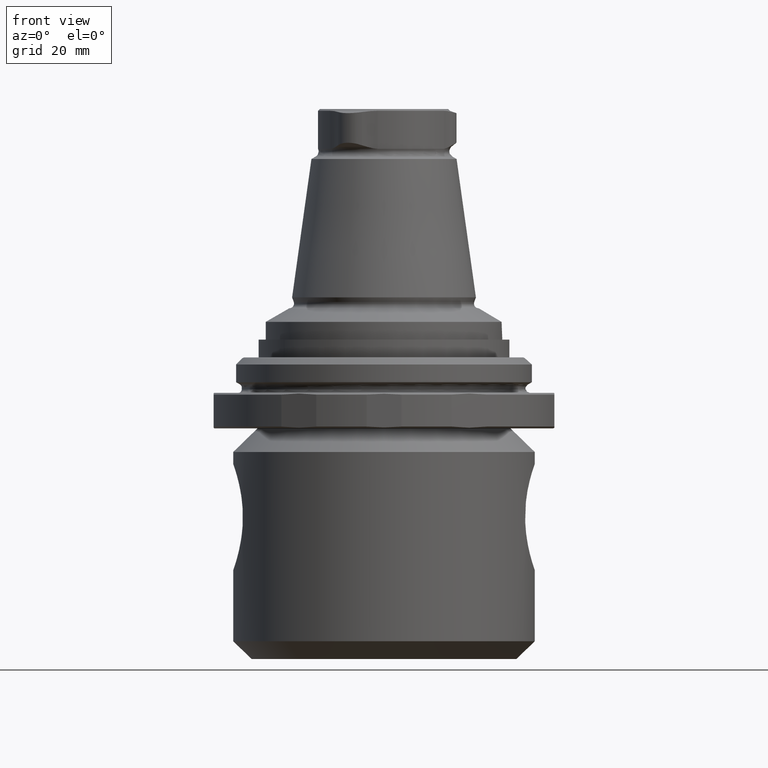
[diagram: clean part render]
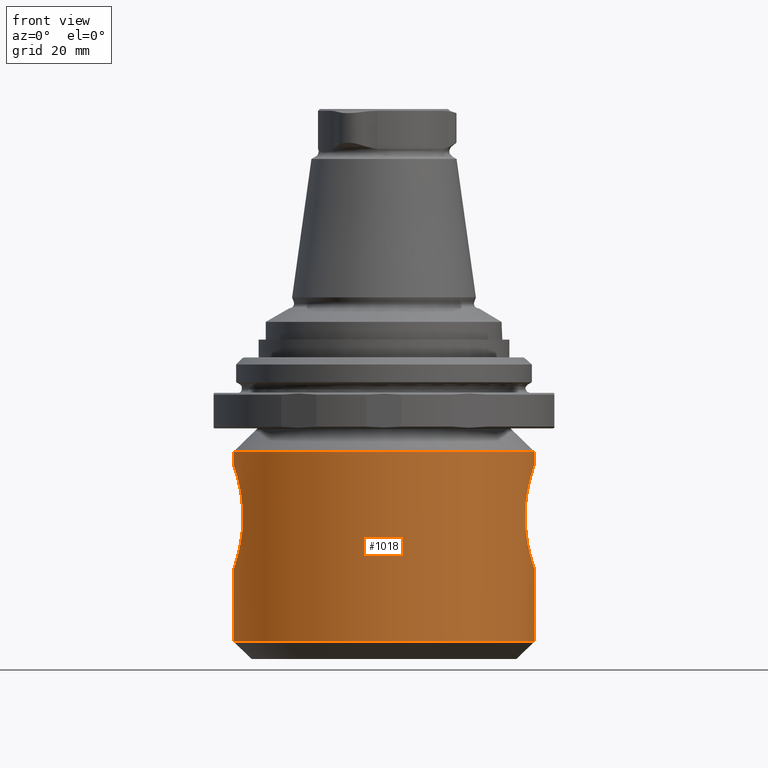
[diagram: same view with one face highlighted and labeled with its STEP entity id]
A machine part, front view. The second image highlights one B-rep face of the part: STEP entity #1018.
In plain terms, the highlighted cylindrical surface (bore or boss wall) has radius 25.5 mm, axis along (-0, -0, -1).
Its self-contained STEP definition (entity closure, byte-faithful):
#20=ELLIPSE('',#1156,730.669562870024,25.5);
#21=ELLIPSE('',#1157,730.669562870024,25.5);
#50=LINE('',#1891,#80);
#51=LINE('',#1905,#81);
#80=VECTOR('',#1437,1000.);
#81=VECTOR('',#1438,1000.);
#122=B_SPLINE_CURVE_WITH_KNOTS('',3,(#1867,#1868,#1869,#1870,#1871,#1872,
#1873,#1874,#1875,#1876,#1877),.UNSPECIFIED.,.F.,.F.,(4,1,1,1,1,1,1,1,4),
(4.66151540753909E-15,0.00335326394243602,0.00670652788486739,0.0100597918272988,
0.0134130557697301,0.0167663197121615,0.0201195836545928,0.0234728475970242,
0.0268261115394556),.UNSPECIFIED.);
#123=B_SPLINE_CURVE_WITH_KNOTS('',3,(#1881,#1882,#1883,#1884,#1885,#1886,
#1887,#1888,#1889,#1890),.UNSPECIFIED.,.F.,.F.,(4,1,1,1,1,1,1,4),(7.62346766405422E-15,
0.00291051555228811,0.00582103110456859,0.00873154665684907,0.0116420622091296,
0.01455257776141,0.0174630933136905,0.0232841244182515),.UNSPECIFIED.);
#124=B_SPLINE_CURVE_WITH_KNOTS('',3,(#1894,#1895,#1896,#1897,#1898,#1899,
#1900,#1901,#1902,#1903),.UNSPECIFIED.,.F.,.F.,(4,1,1,1,1,1,1,4),(1.09713545893022E-17,
0.00319408149327961,0.0063881629865592,0.00958224447983879,0.0127763259731184,
0.015970407466398,0.0191644889596776,0.0255526519462368),.UNSPECIFIED.);
#125=B_SPLINE_CURVE_WITH_KNOTS('',3,(#1907,#1908,#1909,#1910,#1911,#1912,
#1913,#1914,#1915,#1916),.UNSPECIFIED.,.F.,.F.,(4,1,1,1,1,1,1,4),(1.09713545893022E-17,
0.00319410284334378,0.00638820568668756,0.00958230853003133,0.0127764113733751,
0.0159705142167189,0.0191646170600626,0.0255528227467502),.UNSPECIFIED.);
#406=ORIENTED_EDGE('',*,*,#557,.F.);
#407=ORIENTED_EDGE('',*,*,#558,.F.);
#408=ORIENTED_EDGE('',*,*,#559,.F.);
#409=ORIENTED_EDGE('',*,*,#560,.F.);
#410=ORIENTED_EDGE('',*,*,#561,.F.);
#411=ORIENTED_EDGE('',*,*,#562,.F.);
#412=ORIENTED_EDGE('',*,*,#563,.F.);
#413=ORIENTED_EDGE('',*,*,#564,.F.);
#414=ORIENTED_EDGE('',*,*,#554,.F.);
#415=ORIENTED_EDGE('',*,*,#553,.T.);
#553=EDGE_CURVE('',#654,#654,#717,.T.);
#554=EDGE_CURVE('',#655,#655,#718,.T.);
#557=EDGE_CURVE('',#658,#659,#20,.F.);
#558=EDGE_CURVE('',#660,#658,#122,.T.);
#559=EDGE_CURVE('',#661,#660,#21,.F.);
#560=EDGE_CURVE('',#659,#661,#123,.T.);
#561=EDGE_CURVE('',#662,#663,#50,.F.);
#562=EDGE_CURVE('',#664,#662,#124,.T.);
#563=EDGE_CURVE('',#665,#664,#51,.T.);
#564=EDGE_CURVE('',#663,#665,#125,.T.);
#654=VERTEX_POINT('',#1854);
#655=VERTEX_POINT('',#1857);
#658=VERTEX_POINT('',#1865);
#659=VERTEX_POINT('',#1866);
#660=VERTEX_POINT('',#1878);
#661=VERTEX_POINT('',#1880);
#662=VERTEX_POINT('',#1892);
#663=VERTEX_POINT('',#1893);
#664=VERTEX_POINT('',#1904);
#665=VERTEX_POINT('',#1906);
#717=CIRCLE('',#1149,25.5);
#718=CIRCLE('',#1151,25.5);
#813=EDGE_LOOP('',(#406,#407,#408,#409));
#814=EDGE_LOOP('',(#410,#411,#412,#413));
#815=EDGE_LOOP('',(#414));
#816=EDGE_LOOP('',(#415));
#913=FACE_BOUND('',#813,.T.);
#914=FACE_BOUND('',#814,.T.);
#915=FACE_BOUND('',#815,.T.);
#916=FACE_BOUND('',#816,.T.);
#951=CYLINDRICAL_SURFACE('',#1155,25.5);
#1018=ADVANCED_FACE('',(#913,#914,#915,#916),#951,.T.);
#1149=AXIS2_PLACEMENT_3D('',#1853,#1419,#1420);
#1151=AXIS2_PLACEMENT_3D('',#1856,#1423,#1424);
#1155=AXIS2_PLACEMENT_3D('',#1863,#1431,#1432);
#1156=AXIS2_PLACEMENT_3D('',#1864,#1433,#1434);
#1157=AXIS2_PLACEMENT_3D('',#1879,#1435,#1436);
#1419=DIRECTION('',(-5.47430718319515E-16,-8.51929311524195E-24,-1.));
#1420=DIRECTION('',(-6.38378239159465E-16,1.,-3.83055215771257E-23));
#1423=DIRECTION('',(-5.47430718319515E-16,-8.51929311524195E-24,-1.));
#1424=DIRECTION('',(-6.38378239159465E-16,1.,-3.83055215771257E-23));
#1431=DIRECTION('',(-5.47430718319515E-16,-8.51929311524195E-24,-1.));
#1432=DIRECTION('',(-6.38378239159465E-16,1.,-3.83055215771257E-23));
#1433=DIRECTION('',(-0.999390827019096,0.,0.0348994967025012));
#1434=DIRECTION('',(-0.0348994967025012,-8.52448600179034E-24,-0.999390827019096));
#1435=DIRECTION('',(-0.999390827019096,0.,0.0348994967025012));
#1436=DIRECTION('',(-0.0348994967025012,-8.52448600179034E-24,-0.999390827019096));
#1437=DIRECTION('',(-5.47430718319515E-16,-8.51929311524195E-24,-1.));
#1438=DIRECTION('',(-5.47430718319515E-16,-8.51929311524195E-24,-1.));
#1853=CARTESIAN_POINT('',(-9.97856233344843E-14,-9.81645352450479E-14,-11.));
#1854=CARTESIAN_POINT('',(-1.16064268433051E-13,25.4999999999999,-11.));
#1856=CARTESIAN_POINT('',(-1.17303406320709E-13,-9.81645355176652E-14,-43.));
#1857=CARTESIAN_POINT('',(-1.33582051419275E-13,25.4999999999999,-43.));
#1863=CARTESIAN_POINT('',(-1.20038331439195E-13,-9.8164535560227E-14,-47.9959292143521));
#1864=CARTESIAN_POINT('',(-4.80457188975072E-13,-9.81645411691813E-14,-706.378525357804));
#1865=CARTESIAN_POINT('',(23.872706129106,8.96347600394721,-22.7536660961033));
#1866=CARTESIAN_POINT('',(23.9875357963742,8.65148116900557,-19.4653746598175));
#1867=CARTESIAN_POINT('',(23.8727061291062,-8.96347600394767,-22.7536660960974));
#1868=CARTESIAN_POINT('',(23.91096526476,-8.86157925074449,-23.8832827184777));
#1869=CARTESIAN_POINT('',(24.1485012484964,-8.23932251641704,-26.0573260215644));
#1870=CARTESIAN_POINT('',(24.7732665445341,-6.22006554687579,-28.7625693178697));
#1871=CARTESIAN_POINT('',(25.3439062429768,-3.36818056579162,-30.5700770061288));
#1872=CARTESIAN_POINT('',(25.5777928804108,-0.00526391945152292,-31.2223935045322));
#1873=CARTESIAN_POINT('',(25.3449199862889,3.36300226430822,-30.5732579130312));
#1874=CARTESIAN_POINT('',(24.7732496987363,6.2201774037053,-28.7621786328748));
#1875=CARTESIAN_POINT('',(24.149337714503,8.2367926002462,-26.0624282163498));
#1876=CARTESIAN_POINT('',(23.9109712292514,8.86156336532695,-23.8834588225375));
#1877=CARTESIAN_POINT('',(23.8727061291058,8.96347600394781,-22.7536660960959));
#1878=CARTESIAN_POINT('',(23.872706129106,-8.9634760039473,-22.7536660961022));
#1879=CARTESIAN_POINT('',(-4.80457188975072E-13,-9.81645411691813E-14,-706.378525357804));
#1880=CARTESIAN_POINT('',(23.9875357963742,-8.65148116900586,-19.4653746598186));
#1881=CARTESIAN_POINT('',(23.987535796374,8.65148116900764,-19.465374659825));
#1882=CARTESIAN_POINT('',(24.0852115461041,8.38066042775892,-18.5235646432088));
#1883=CARTESIAN_POINT('',(24.3780817521198,7.54599753162428,-16.7742320275348));
#1884=CARTESIAN_POINT('',(24.9328819717464,5.52339757795319,-14.6729596247493));
#1885=CARTESIAN_POINT('',(25.3829377728676,2.93307351971803,-13.3152302601983));
#1886=CARTESIAN_POINT('',(25.5578996597506,0.0113157415076889,-12.8358642848701));
#1887=CARTESIAN_POINT('',(25.3854505871736,-2.91526278029863,-13.3084336126869));
#1888=CARTESIAN_POINT('',(24.7840568683645,-6.3816596591402,-15.1187207972327));
#1889=CARTESIAN_POINT('',(24.1828628967738,-8.10990733658244,-17.581989887436));
#1890=CARTESIAN_POINT('',(23.9875357963737,-8.65148116900722,-19.4653746598235));
#1891=CARTESIAN_POINT('',(-23.9000000000001,-8.89044430835727,-47.9959292143521));
#1892=CARTESIAN_POINT('',(-23.9000000000001,-8.89044430835729,-23.3999999999991));
#1893=CARTESIAN_POINT('',(-23.9000000000001,-8.89044430835729,-20.6000000000009));
#1894=CARTESIAN_POINT('',(-23.9000000000001,8.89044430835709,-23.4000000000003));
#1895=CARTESIAN_POINT('',(-23.9624420014528,8.72258275015396,-24.4659741676564));
#1896=CARTESIAN_POINT('',(-24.2260654843115,8.01399931319632,-26.490469438031));
#1897=CARTESIAN_POINT('',(-24.8310136742185,5.97940956290612,-28.9744118614176));
#1898=CARTESIAN_POINT('',(-25.3587343641571,3.21310653716664,-30.6100167568171));
#1899=CARTESIAN_POINT('',(-25.5703170049593,0.00291086468324021,-31.1943377484198));
#1900=CARTESIAN_POINT('',(-25.3599966938311,-3.20795161211129,-30.6126296366728));
#1901=CARTESIAN_POINT('',(-24.6518653889746,-6.90692891860949,-28.4261392009346));
#1902=CARTESIAN_POINT('',(-24.0248844332604,-8.55472003503647,-25.5319556820879));
#1903=CARTESIAN_POINT('',(-23.9000000000001,-8.89044430835729,-23.3999999999991));
#1904=CARTESIAN_POINT('',(-23.9000000000001,8.89044430835709,-23.4000000000003));
#1905=CARTESIAN_POINT('',(-23.9000000000001,8.89044430835708,-47.9959292143521));
#1906=CARTESIAN_POINT('',(-23.9000000000001,8.89044430835709,-20.5999999999996));
#1907=CARTESIAN_POINT('',(-23.9000000000001,-8.89044430835729,-20.6000000000009));
#1908=CARTESIAN_POINT('',(-23.9624424188312,-8.72258162812438,-19.5340187070986));
#1909=CARTESIAN_POINT('',(-24.226071982056,-8.01391129925039,-17.5095019194251));
#1910=CARTESIAN_POINT('',(-24.831010540591,-5.97965677471225,-15.0255874629186));
#1911=CARTESIAN_POINT('',(-25.3587859334166,-3.21201278140923,-13.3898492106375));
#1912=CARTESIAN_POINT('',(-25.5701585083197,-0.0066787525689266,-12.8060651086082));
#1913=CARTESIAN_POINT('',(-25.3605758869046,3.2031075933733,-13.3859021030651));
#1914=CARTESIAN_POINT('',(-24.6534887577862,6.901483012984,-15.5675639672219));
#1915=CARTESIAN_POINT('',(-24.0248763822873,8.55474167830299,-18.4681817595251));
#1916=CARTESIAN_POINT('',(-23.9000000000001,8.89044430835709,-20.5999999999996));